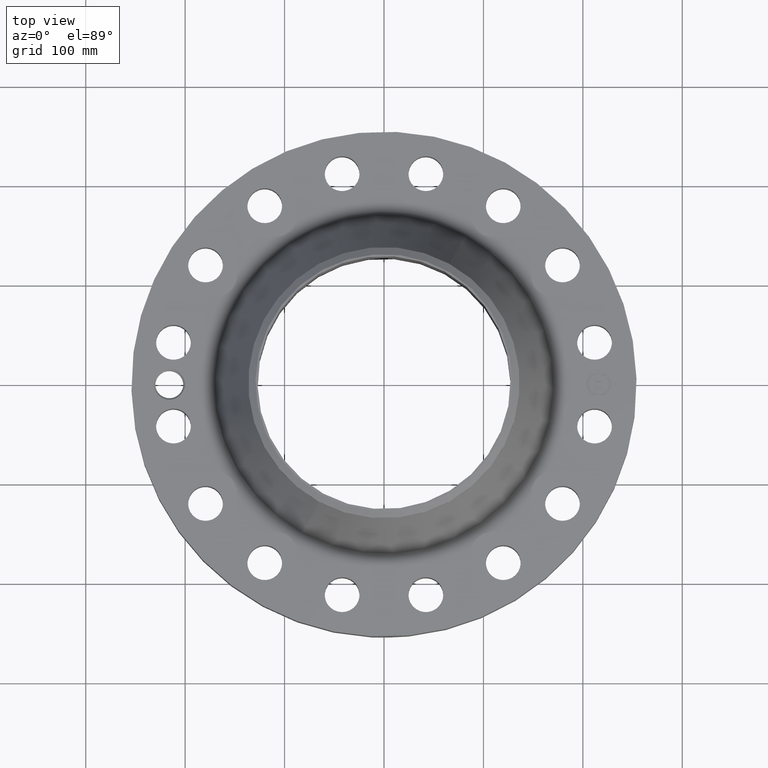
[diagram: clean part render]
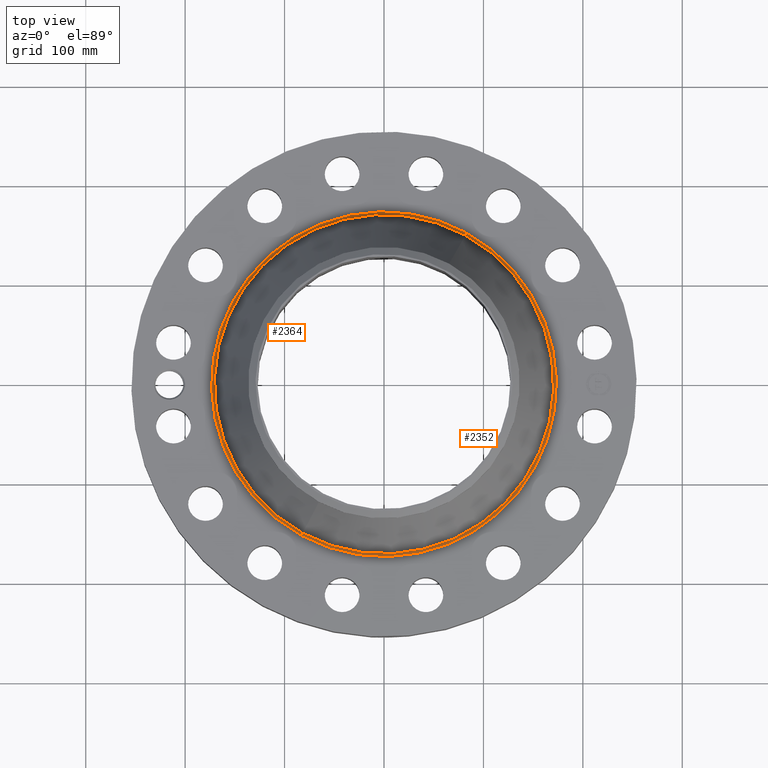
[diagram: same view with one multi-face feature highlighted, each face labeled with its STEP entity id]
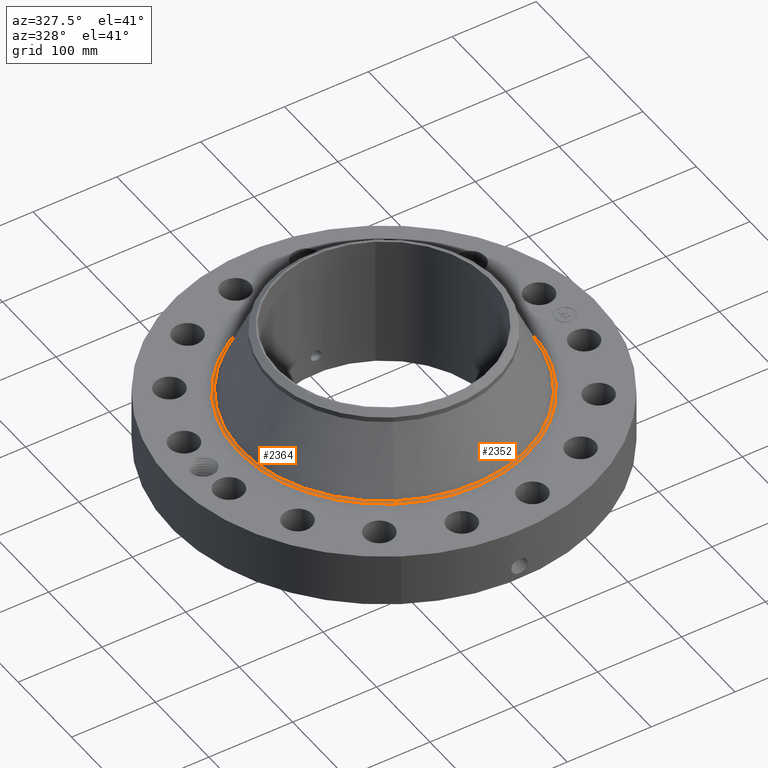
[diagram: same view with one multi-face feature highlighted, each face labeled with its STEP entity id]
A machine part, top view. The highlighted faces form ONE feature: a constant-radius fillet chain: 2 tangent blend faces with common blend radius 3.048 mm. The faces share edges in the B-rep.
A second angle (auxiliary view) of the same feature is appended — it is thin or edge-on in the first view.
Their STEP definitions:
[1] entity #2364 (Torus):
#724=AXIS2_PLACEMENT_3D('Circle Axis2P3D',#722,#723,$) ;
#2325=AXIS2_PLACEMENT_3D('Torus Axis2P3D',#2322,#2323,#2324) ;
#2329=AXIS2_PLACEMENT_3D('Circle Axis2P3D',#2327,#2328,$) ;
#2343=AXIS2_PLACEMENT_3D('Circle Axis2P3D',#2341,#2342,$) ;
#2355=AXIS2_PLACEMENT_3D('Circle Axis2P3D',#2353,#2354,$) ;
#722=CARTESIAN_POINT('Axis2P3D Location',(0.,0.,2.75000000001)) ;
#726=CARTESIAN_POINT('Vertex',(-3.27326388485,-5.99166935115,2.75000000001)) ;
#728=CARTESIAN_POINT('Vertex',(3.27326388485,5.99166935115,2.75000000001)) ;
#2322=CARTESIAN_POINT('Axis2P3D Location',(0.,0.,2.87000000001)) ;
#2327=CARTESIAN_POINT('Axis2P3D Location',(3.27326388485,5.99166935115,2.87000000001)) ;
#2331=CARTESIAN_POINT('Vertex',(3.22083327615,5.89569576567,2.82060260978)) ;
#2338=CARTESIAN_POINT('Vertex',(-3.22083327615,-5.89569576567,2.82060260978)) ;
#2341=CARTESIAN_POINT('Axis2P3D Location',(-3.27326388485,-5.99166935115,2.87000000001)) ;
#2353=CARTESIAN_POINT('Axis2P3D Location',(0.,0.,2.82060260978)) ;
#723=DIRECTION('Axis2P3D Direction',(0.,0.,-0.0393700787402)) ;
#2323=DIRECTION('Axis2P3D Direction',(0.,0.,-0.0393700787402)) ;
#2324=DIRECTION('Axis2P3D XDirection',(-0.0188750212049,-0.0345504945626,0.)) ;
#2328=DIRECTION('Axis2P3D Direction',(-0.0345504945626,0.0188750212049,0.)) ;
#2342=DIRECTION('Axis2P3D Direction',(0.0345504945626,-0.0188750212049,0.)) ;
#2354=DIRECTION('Axis2P3D Direction',(0.,0.,-0.0393700787402)) ;
#2359=ORIENTED_EDGE('',*,*,#730,.F.) ;
#2360=ORIENTED_EDGE('',*,*,#2345,.T.) ;
#2361=ORIENTED_EDGE('',*,*,#2357,.T.) ;
#2362=ORIENTED_EDGE('',*,*,#2333,.F.) ;
#2364=ADVANCED_FACE('PartBody',(#2363),#2326,.F.) ;
#725=CIRCLE('generated circle',#724,6.82747084017) ;
#2330=CIRCLE('generated circle',#2329,0.12) ;
#2344=CIRCLE('generated circle',#2343,0.12) ;
#2356=CIRCLE('generated circle',#2355,6.71810952234) ;
#2326=TOROIDAL_SURFACE('homeo Torus',#2325,6.82747084017,0.12) ;
#730=EDGE_CURVE('',#727,#729,#725,.T.) ;
#2333=EDGE_CURVE('',#729,#2332,#2330,.T.) ;
#2345=EDGE_CURVE('',#727,#2339,#2344,.T.) ;
#2357=EDGE_CURVE('',#2339,#2332,#2356,.T.) ;
#2358=EDGE_LOOP('',(#2359,#2360,#2361,#2362)) ;
#2363=FACE_OUTER_BOUND('',#2358,.T.) ;
#727=VERTEX_POINT('',#726) ;
#729=VERTEX_POINT('',#728) ;
#2332=VERTEX_POINT('',#2331) ;
#2339=VERTEX_POINT('',#2338) ;
[2] entity #2352 (Torus):
#733=AXIS2_PLACEMENT_3D('Circle Axis2P3D',#731,#732,$) ;
#2325=AXIS2_PLACEMENT_3D('Torus Axis2P3D',#2322,#2323,#2324) ;
#2329=AXIS2_PLACEMENT_3D('Circle Axis2P3D',#2327,#2328,$) ;
#2336=AXIS2_PLACEMENT_3D('Circle Axis2P3D',#2334,#2335,$) ;
#2343=AXIS2_PLACEMENT_3D('Circle Axis2P3D',#2341,#2342,$) ;
#726=CARTESIAN_POINT('Vertex',(-3.27326388485,-5.99166935115,2.75000000001)) ;
#728=CARTESIAN_POINT('Vertex',(3.27326388485,5.99166935115,2.75000000001)) ;
#731=CARTESIAN_POINT('Axis2P3D Location',(0.,0.,2.75000000001)) ;
#2322=CARTESIAN_POINT('Axis2P3D Location',(0.,0.,2.87000000001)) ;
#2327=CARTESIAN_POINT('Axis2P3D Location',(3.27326388485,5.99166935115,2.87000000001)) ;
#2331=CARTESIAN_POINT('Vertex',(3.22083327615,5.89569576567,2.82060260978)) ;
#2334=CARTESIAN_POINT('Axis2P3D Location',(0.,0.,2.82060260978)) ;
#2338=CARTESIAN_POINT('Vertex',(-3.22083327615,-5.89569576567,2.82060260978)) ;
#2341=CARTESIAN_POINT('Axis2P3D Location',(-3.27326388485,-5.99166935115,2.87000000001)) ;
#732=DIRECTION('Axis2P3D Direction',(0.,0.,-0.0393700787402)) ;
#2323=DIRECTION('Axis2P3D Direction',(0.,0.,-0.0393700787402)) ;
#2324=DIRECTION('Axis2P3D XDirection',(-0.0188750212049,-0.0345504945626,0.)) ;
#2328=DIRECTION('Axis2P3D Direction',(-0.0345504945626,0.0188750212049,0.)) ;
#2335=DIRECTION('Axis2P3D Direction',(0.,0.,-0.0393700787402)) ;
#2342=DIRECTION('Axis2P3D Direction',(0.0345504945626,-0.0188750212049,0.)) ;
#2347=ORIENTED_EDGE('',*,*,#735,.F.) ;
#2348=ORIENTED_EDGE('',*,*,#2333,.T.) ;
#2349=ORIENTED_EDGE('',*,*,#2340,.T.) ;
#2350=ORIENTED_EDGE('',*,*,#2345,.F.) ;
#2352=ADVANCED_FACE('PartBody',(#2351),#2326,.F.) ;
#734=CIRCLE('generated circle',#733,6.82747084017) ;
#2330=CIRCLE('generated circle',#2329,0.12) ;
#2337=CIRCLE('generated circle',#2336,6.71810952234) ;
#2344=CIRCLE('generated circle',#2343,0.12) ;
#2326=TOROIDAL_SURFACE('homeo Torus',#2325,6.82747084017,0.12) ;
#735=EDGE_CURVE('',#729,#727,#734,.T.) ;
#2333=EDGE_CURVE('',#729,#2332,#2330,.T.) ;
#2340=EDGE_CURVE('',#2332,#2339,#2337,.T.) ;
#2345=EDGE_CURVE('',#727,#2339,#2344,.T.) ;
#2346=EDGE_LOOP('',(#2347,#2348,#2349,#2350)) ;
#2351=FACE_OUTER_BOUND('',#2346,.T.) ;
#727=VERTEX_POINT('',#726) ;
#729=VERTEX_POINT('',#728) ;
#2332=VERTEX_POINT('',#2331) ;
#2339=VERTEX_POINT('',#2338) ;